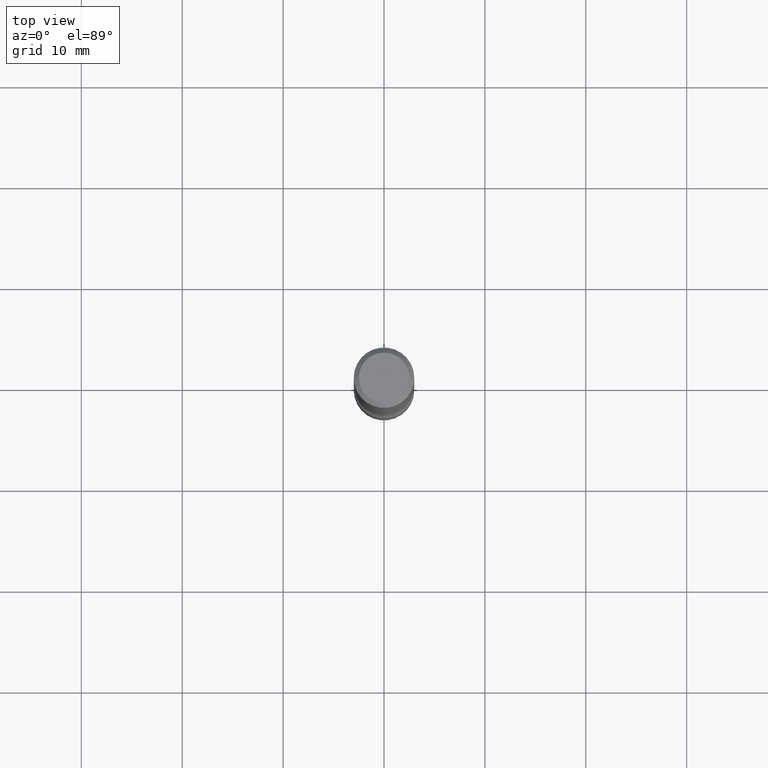
[diagram: clean part render]
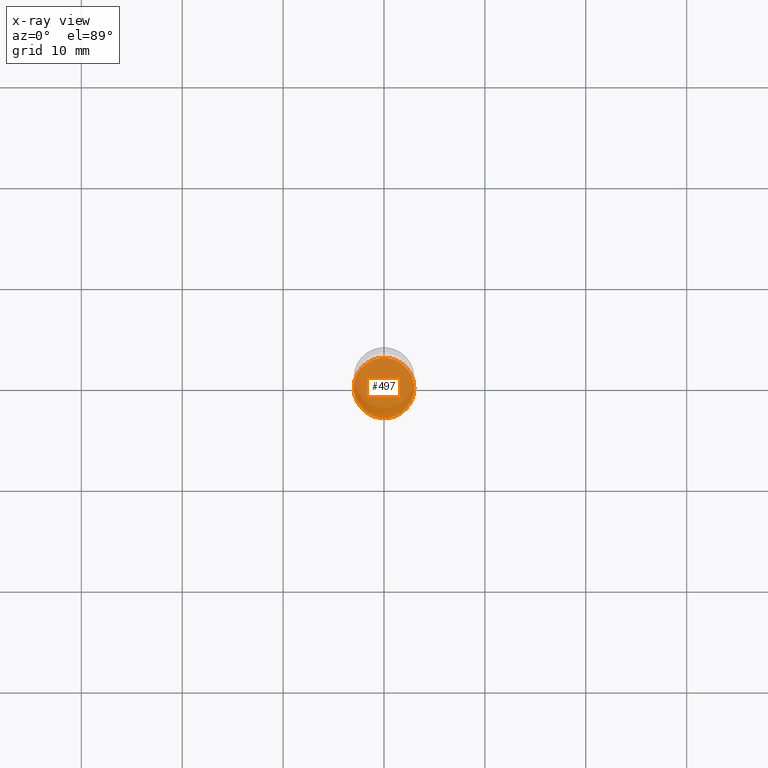
[diagram: x-ray — body ghosted, one internal face saturated and labeled with its STEP entity id]
A machine part, top view, then the same camera in x-ray: the body is ghosted and one INTERNAL B-rep face — a face not visible from any outside direction — is saturated and labeled: STEP entity #497.
In plain terms, the highlighted planar face has unit normal (0, -0, -1).
Its self-contained STEP definition (entity closure, byte-faithful):
#54 = DIRECTION ( 'NONE',  ( 1.000000000000000000, -6.982962677686269077E-15, 0.000000000000000000 ) ) ;
#74 = DIRECTION ( 'NONE',  ( 2.438088387897960049E-29, -3.491481338843145188E-15, -1.000000000000000000 ) ) ;
#98 = VERTEX_POINT ( 'NONE', #494 ) ;
#137 = VERTEX_POINT ( 'NONE', #288 ) ;
#139 = AXIS2_PLACEMENT_3D ( 'NONE', #202, #74, #462 ) ;
#152 = CIRCLE ( 'NONE', #557, 0.1181000000000000660 ) ;
#165 = EDGE_CURVE ( 'NONE', #137, #98, #152, .T. ) ;
#199 = CARTESIAN_POINT ( 'NONE',  ( 5.680334943006831795E-29, -8.110012853864854101E-15, -2.322799999999998644 ) ) ;
#202 = CARTESIAN_POINT ( 'NONE',  ( 5.680334943006831795E-29, -8.110012853864854101E-15, -2.322799999999998644 ) ) ;
#225 = DIRECTION ( 'NONE',  ( 1.000000000000000000, -6.982962677686269077E-15, 0.000000000000000000 ) ) ;
#232 = CIRCLE ( 'NONE', #444, 0.1181000000000000660 ) ;
#288 = CARTESIAN_POINT ( 'NONE',  ( 0.1181000000000000660, -8.934700746099602364E-15, -2.322799999999998644 ) ) ;
#310 = DIRECTION ( 'NONE',  ( -2.445468806185136597E-29, 3.491481338843145583E-15, 1.000000000000000000 ) ) ;
#365 = ORIENTED_EDGE ( 'NONE', *, *, #165, .T. ) ;
#368 = CARTESIAN_POINT ( 'NONE',  ( 5.680334943006831795E-29, -8.110012853864854101E-15, -2.322799999999998644 ) ) ;
#369 = EDGE_LOOP ( 'NONE', ( #365, #411 ) ) ;
#395 = EDGE_CURVE ( 'NONE', #98, #137, #232, .T. ) ;
#411 = ORIENTED_EDGE ( 'NONE', *, *, #395, .T. ) ;
#415 = PLANE ( 'NONE',  #139 ) ;
#438 = DIRECTION ( 'NONE',  ( -2.445468806185136597E-29, 3.491481338843145583E-15, 1.000000000000000000 ) ) ;
#444 = AXIS2_PLACEMENT_3D ( 'NONE', #368, #310, #225 ) ;
#462 = DIRECTION ( 'NONE',  ( -1.000000000000000000, 6.982962677686265922E-15, -4.876176775795935793E-29 ) ) ;
#469 = FACE_OUTER_BOUND ( 'NONE', #369, .T. ) ;
#494 = CARTESIAN_POINT ( 'NONE',  ( -0.1181000000000000660, -8.095549775166928111E-15, -2.322799999999998644 ) ) ;
#497 = ADVANCED_FACE ( 'NONE', ( #469 ), #415, .F. ) ;
#557 = AXIS2_PLACEMENT_3D ( 'NONE', #199, #438, #54 ) ;